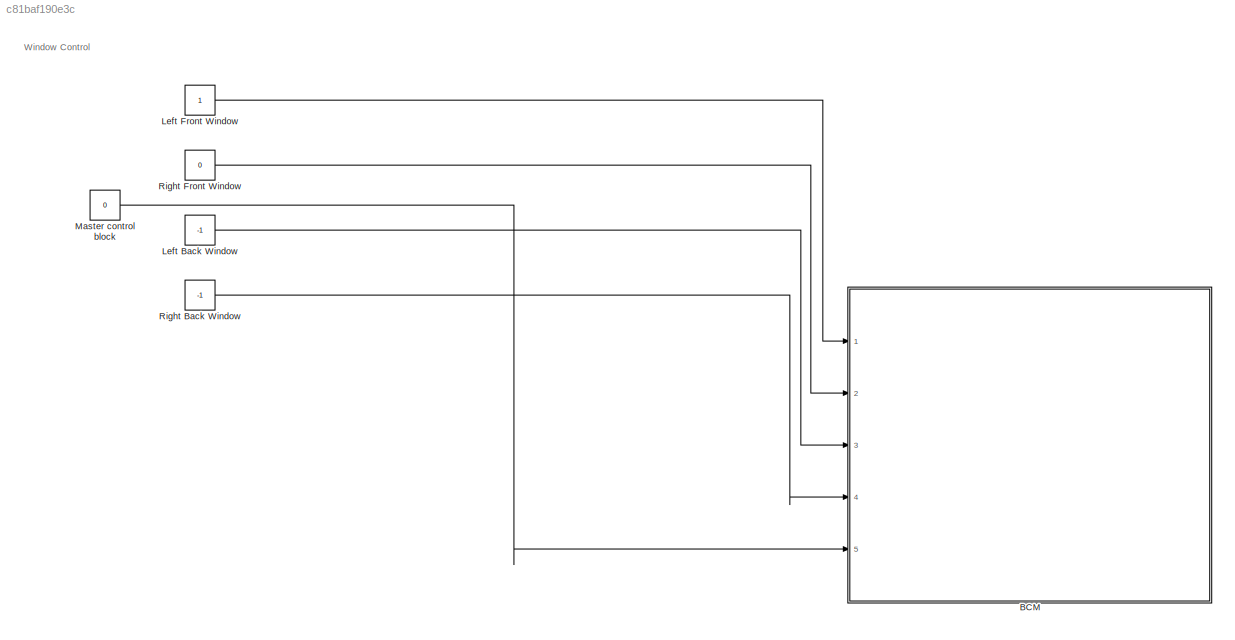
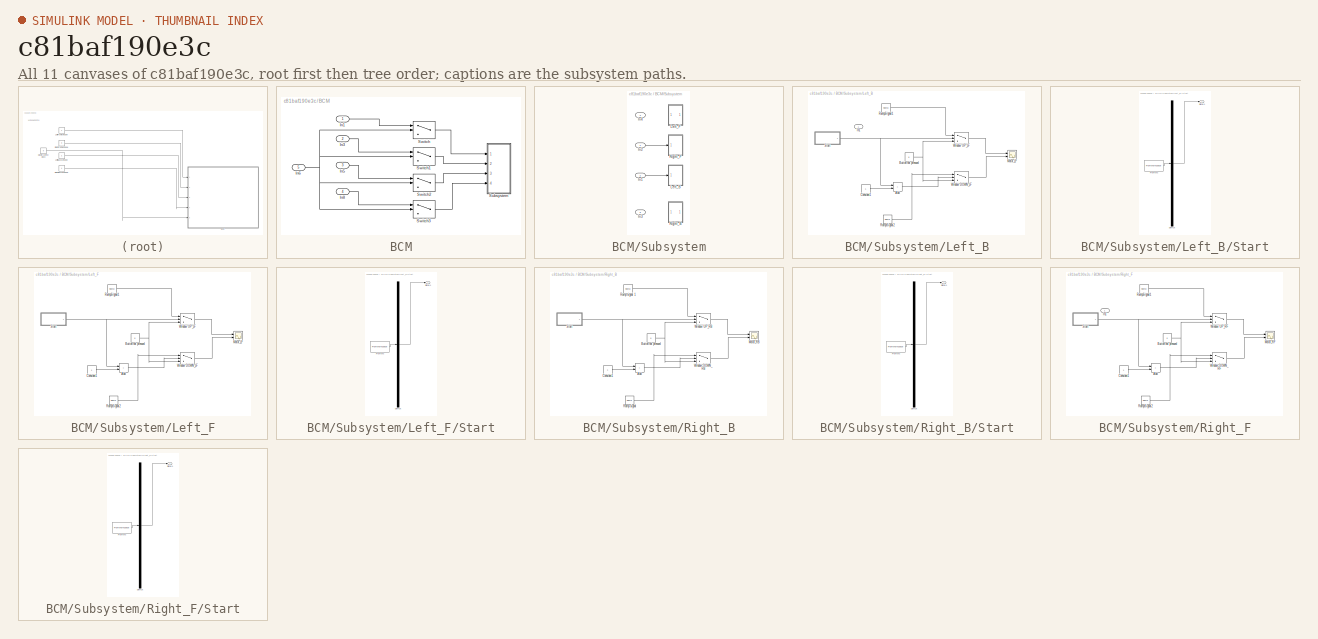
[diagram: thumbnail index - all 11 canvases of the model, root first then tree order]
MODEL slx_c81baf190e3c
KIND model
CONFIG AbsTol = auto
CONFIG EnableMultiTasking = off
CONFIG FixedStep = auto
CONFIG MaxStep = auto
CONFIG MinStep = auto
CONFIG RelTol = 1e-3
CONFIG SampleTimeConstraint = Unconstrained
CONFIG SolverName = VariableStepAuto
CONFIG StartTime = 0.0
CONFIG StopTime = 10.0
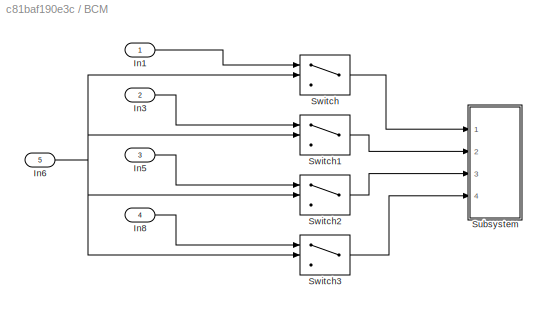
BLOCK [SubSystem] BCM
  Ports = [5]
  RequestExecContextInheritance = off
BLOCK [Inport] BCM/In1
BLOCK [Inport] BCM/In3
  Port = 2
BLOCK [Inport] BCM/In5
  Port = 3
BLOCK [Inport] BCM/In6
  Port = 5
BLOCK [Inport] BCM/In8
  Port = 4
BLOCK [SubSystem] BCM/Subsystem
  Ports = [4]
  RequestExecContextInheritance = off
BLOCK [Inport] BCM/Subsystem/In1
  Port = 2
BLOCK [Inport] BCM/Subsystem/In2
BLOCK [Inport] BCM/Subsystem/In3
  Port = 3
BLOCK [Inport] BCM/Subsystem/In4
  Port = 4
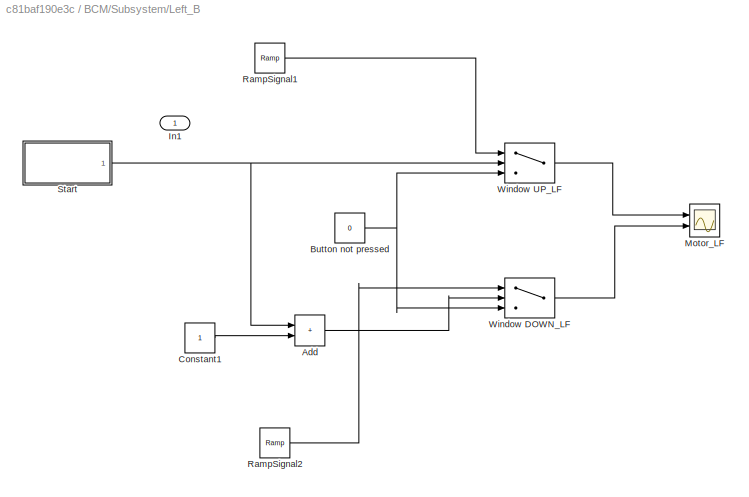
BLOCK [SubSystem] BCM/Subsystem/Left_B
  Ports = [1]
  RequestExecContextInheritance = off
BLOCK [Sum] BCM/Subsystem/Left_B/Add
  IconShape = rectangular
  Ports = [2, 1]
BLOCK [Constant] BCM/Subsystem/Left_B/Button not pressed
  Value = 0
BLOCK [Constant] BCM/Subsystem/Left_B/Constant1
BLOCK [Inport] BCM/Subsystem/Left_B/In1
BLOCK [Scope] BCM/Subsystem/Left_B/Motor_LF
  Floating = off
  NumInputPorts = 2
  Ports = [2]
  ScopeSpecificationString = Simulink.scopes.TimeScopeBlockCfg('CurrentConfiguration', extmgr.ConfigurationSet(extmgr.Configuration('Core','General UI',true),extmgr.Configuration('Core','Source UI',true),extmgr.Configuration('Sources','WiredSimulink',true,'DataLoggingVariableName','ScopeData3'),extmgr.Configuration('Visuals','Time Domain',true,'SerializedDisplays',{struct('MinYLimReal','-0.75','MaxYLimReal','6.75','YLabelReal...<+2109ch>
BLOCK [Reference] BCM/Subsystem/Left_B/RampSignal1  REF=simulink/Sources/Ramp
  Ports = [0, 1]
  SourceBlock = simulink/Sources/Ramp
  SourceProductBaseCode = SL
  SourceType = Ramp
BLOCK [Reference] BCM/Subsystem/Left_B/RampSignal2  REF=simulink/Sources/Ramp
  Ports = [0, 1]
  SourceBlock = simulink/Sources/Ramp
  SourceProductBaseCode = SL
  SourceType = Ramp
BLOCK [SubSystem] BCM/Subsystem/Left_B/Start
  ClipboardFcn = sigbuilder_block('clipboard');
  CloseFcn = sigbuilder_block('close');
  ContinueFcn = sigbuilder_block('continue');
  CopyFcn = sigbuilder_block('copy');
  DeleteFcn = sigbuilder_block('delete');
  LoadFcn = sigbuilder_block('load');
  MaskHideContents = on
  ModelCloseFcn = sigbuilder_block('modelClose');
  NameChangeFcn = sigbuilder_block('namechange');
  OpenFcn = sigbuilder_block('open',[437.6 199.2 550.4 400 ]);
  PauseFcn = sigbuilder_block('pause');
  Ports = [0, 1]
  PreSaveFcn = sigbuilder_block('preSave');
  RequestExecContextInheritance = off
  StartFcn = sigbuilder_block('start');
  StopFcn = sigbuilder_block('stop');
  Tag = STV Subsys
BLOCK [Demux] BCM/Subsystem/Left_B/Start/Demux
  DisplayOption = none
  Outputs = 1
  Ports = [1, 1]
  Tag = STV Demux
BLOCK [FromWorkspace] BCM/Subsystem/Left_B/Start/FromWs
  Tag = STV FromWs
  VariableName = tuvar
BLOCK [Outport] BCM/Subsystem/Left_B/Start/Signal 1
  Tag = STV Outport
BLOCK [Switch] BCM/Subsystem/Left_B/Window DOWN_LF
  InputSameDT = off
  SaturateOnIntegerOverflow = off
BLOCK [Switch] BCM/Subsystem/Left_B/Window UP_LF
  Criteria = u2 > Threshold
  InputSameDT = off
  SaturateOnIntegerOverflow = off
BLOCK [SubSystem] BCM/Subsystem/Left_F
  Ports = []
  RequestExecContextInheritance = off
BLOCK [Sum] BCM/Subsystem/Left_F/Add
  IconShape = rectangular
  Ports = [2, 1]
BLOCK [Constant] BCM/Subsystem/Left_F/Button not pressed
  Value = 0
BLOCK [Constant] BCM/Subsystem/Left_F/Constant1
BLOCK [Scope] BCM/Subsystem/Left_F/Motor_LF
  Floating = off
  NumInputPorts = 2
  Ports = [2]
  ScopeSpecificationString = Simulink.scopes.TimeScopeBlockCfg('CurrentConfiguration', extmgr.ConfigurationSet(extmgr.Configuration('Core','General UI',true),extmgr.Configuration('Core','Source UI',true),extmgr.Configuration('Sources','WiredSimulink',true,'DataLoggingVariableName','ScopeData1'),extmgr.Configuration('Visuals','Time Domain',true,'SerializedDisplays',{struct('MinYLimReal','-0.75','MaxYLimReal','6.75','YLabelReal...<+2091ch>
BLOCK [Reference] BCM/Subsystem/Left_F/RampSignal1  REF=simulink/Sources/Ramp
  Ports = [0, 1]
  SourceBlock = simulink/Sources/Ramp
  SourceProductBaseCode = SL
  SourceType = Ramp
BLOCK [Reference] BCM/Subsystem/Left_F/RampSignal2  REF=simulink/Sources/Ramp
  Ports = [0, 1]
  SourceBlock = simulink/Sources/Ramp
  SourceProductBaseCode = SL
  SourceType = Ramp
BLOCK [SubSystem] BCM/Subsystem/Left_F/Start
  ClipboardFcn = sigbuilder_block('clipboard');
  CloseFcn = sigbuilder_block('close');
  ContinueFcn = sigbuilder_block('continue');
  CopyFcn = sigbuilder_block('copy');
  DeleteFcn = sigbuilder_block('delete');
  LoadFcn = sigbuilder_block('load');
  MaskHideContents = on
  ModelCloseFcn = sigbuilder_block('modelClose');
  NameChangeFcn = sigbuilder_block('namechange');
  OpenFcn = sigbuilder_block('open',[437.6 199.2 550.4 400 ]);
  PauseFcn = sigbuilder_block('pause');
  Ports = [0, 1]
  PreSaveFcn = sigbuilder_block('preSave');
  RequestExecContextInheritance = off
  StartFcn = sigbuilder_block('start');
  StopFcn = sigbuilder_block('stop');
  Tag = STV Subsys
BLOCK [Demux] BCM/Subsystem/Left_F/Start/Demux
  DisplayOption = none
  Outputs = 1
  Ports = [1, 1]
  Tag = STV Demux
BLOCK [FromWorkspace] BCM/Subsystem/Left_F/Start/FromWs
  Tag = STV FromWs
  VariableName = tuvar
BLOCK [Outport] BCM/Subsystem/Left_F/Start/Signal 1
  Tag = STV Outport
BLOCK [Switch] BCM/Subsystem/Left_F/Window DOWN_LF
  InputSameDT = off
  SaturateOnIntegerOverflow = off
BLOCK [Switch] BCM/Subsystem/Left_F/Window UP_LF 
  Criteria = u2 > Threshold
  InputSameDT = off
  SaturateOnIntegerOverflow = off
BLOCK [SubSystem] BCM/Subsystem/Right_B
  Ports = []
  RequestExecContextInheritance = off
BLOCK [Sum] BCM/Subsystem/Right_B/Add
  IconShape = rectangular
  Ports = [2, 1]
BLOCK [Constant] BCM/Subsystem/Right_B/Button not pressed
  Value = 0
BLOCK [Constant] BCM/Subsystem/Right_B/Constant1
BLOCK [Scope] BCM/Subsystem/Right_B/Motor_RB
  Floating = off
  NumInputPorts = 2
  Ports = [2]
  ScopeSpecificationString = Simulink.scopes.TimeScopeBlockCfg('CurrentConfiguration', extmgr.ConfigurationSet(extmgr.Configuration('Core','General UI',true),extmgr.Configuration('Core','Source UI',true),extmgr.Configuration('Sources','WiredSimulink',true),extmgr.Configuration('Visuals','Time Domain',true,'SerializedDisplays',{struct('MinYLimReal','-0.75','MaxYLimReal','6.75','YLabelReal','','MinYLimMag','0.00000','MaxYLimMag...<+2028ch>
BLOCK [Reference] BCM/Subsystem/Right_B/Ramp signal  REF=simulink/Sources/Ramp
  Ports = [0, 1]
  SourceBlock = simulink/Sources/Ramp
  SourceProductBaseCode = SL
  SourceType = Ramp
BLOCK [Reference] BCM/Subsystem/Right_B/Ramp signal 1  REF=simulink/Sources/Ramp
  Ports = [0, 1]
  SourceBlock = simulink/Sources/Ramp
  SourceProductBaseCode = SL
  SourceType = Ramp
BLOCK [SubSystem] BCM/Subsystem/Right_B/Start
  ClipboardFcn = sigbuilder_block('clipboard');
  CloseFcn = sigbuilder_block('close');
  ContinueFcn = sigbuilder_block('continue');
  CopyFcn = sigbuilder_block('copy');
  DeleteFcn = sigbuilder_block('delete');
  LoadFcn = sigbuilder_block('load');
  MaskHideContents = on
  ModelCloseFcn = sigbuilder_block('modelClose');
  NameChangeFcn = sigbuilder_block('namechange');
  OpenFcn = sigbuilder_block('open',[437.6 199.2 550.4 400 ]);
  PauseFcn = sigbuilder_block('pause');
  Ports = [0, 1]
  PreSaveFcn = sigbuilder_block('preSave');
  RequestExecContextInheritance = off
  StartFcn = sigbuilder_block('start');
  StopFcn = sigbuilder_block('stop');
  Tag = STV Subsys
BLOCK [Demux] BCM/Subsystem/Right_B/Start/Demux
  DisplayOption = none
  Outputs = 1
  Ports = [1, 1]
  Tag = STV Demux
BLOCK [FromWorkspace] BCM/Subsystem/Right_B/Start/FromWs
  Tag = STV FromWs
  VariableName = tuvar
BLOCK [Outport] BCM/Subsystem/Right_B/Start/Signal 1
  Tag = STV Outport
BLOCK [Switch] BCM/Subsystem/Right_B/Window DOWN_RB
  InputSameDT = off
  SaturateOnIntegerOverflow = off
BLOCK [Switch] BCM/Subsystem/Right_B/Window UP_RB
  Criteria = u2 > Threshold
  InputSameDT = off
  SaturateOnIntegerOverflow = off
BLOCK [SubSystem] BCM/Subsystem/Right_F
  Ports = [1]
  RequestExecContextInheritance = off
BLOCK [Sum] BCM/Subsystem/Right_F/Add
  IconShape = rectangular
  Ports = [2, 1]
BLOCK [Constant] BCM/Subsystem/Right_F/Button not pressed
  Value = 0
BLOCK [Constant] BCM/Subsystem/Right_F/Constant1
BLOCK [Inport] BCM/Subsystem/Right_F/In1
BLOCK [Scope] BCM/Subsystem/Right_F/Motor_RF
  Floating = off
  NumInputPorts = 2
  Ports = [2]
  ScopeSpecificationString = Simulink.scopes.TimeScopeBlockCfg('CurrentConfiguration', extmgr.ConfigurationSet(extmgr.Configuration('Core','General UI',true),extmgr.Configuration('Core','Source UI',true),extmgr.Configuration('Sources','WiredSimulink',true,'DataLoggingVariableName','ScopeData2'),extmgr.Configuration('Visuals','Time Domain',true,'SerializedDisplays',{struct('MinYLimReal','-0.75','MaxYLimReal','6.75','YLabelReal...<+2117ch>
BLOCK [Reference] BCM/Subsystem/Right_F/RampSignal1  REF=simulink/Sources/Ramp
  Ports = [0, 1]
  SourceBlock = simulink/Sources/Ramp
  SourceProductBaseCode = SL
  SourceType = Ramp
BLOCK [Reference] BCM/Subsystem/Right_F/RampSignal2  REF=simulink/Sources/Ramp
  Ports = [0, 1]
  SourceBlock = simulink/Sources/Ramp
  SourceProductBaseCode = SL
  SourceType = Ramp
BLOCK [SubSystem] BCM/Subsystem/Right_F/Start
  ClipboardFcn = sigbuilder_block('clipboard');
  CloseFcn = sigbuilder_block('close');
  ContinueFcn = sigbuilder_block('continue');
  CopyFcn = sigbuilder_block('copy');
  DeleteFcn = sigbuilder_block('delete');
  LoadFcn = sigbuilder_block('load');
  MaskHideContents = on
  ModelCloseFcn = sigbuilder_block('modelClose');
  NameChangeFcn = sigbuilder_block('namechange');
  OpenFcn = sigbuilder_block('open',[437.6 199.2 550.4 400 ]);
  PauseFcn = sigbuilder_block('pause');
  Ports = [0, 1]
  PreSaveFcn = sigbuilder_block('preSave');
  RequestExecContextInheritance = off
  StartFcn = sigbuilder_block('start');
  StopFcn = sigbuilder_block('stop');
  Tag = STV Subsys
BLOCK [Demux] BCM/Subsystem/Right_F/Start/Demux
  DisplayOption = none
  Outputs = 1
  Ports = [1, 1]
  Tag = STV Demux
BLOCK [FromWorkspace] BCM/Subsystem/Right_F/Start/FromWs
  Tag = STV FromWs
  VariableName = tuvar
BLOCK [Outport] BCM/Subsystem/Right_F/Start/Signal 1
  Tag = STV Outport
BLOCK [Switch] BCM/Subsystem/Right_F/Window DOWN_RF
  InputSameDT = off
  SaturateOnIntegerOverflow = off
BLOCK [Switch] BCM/Subsystem/Right_F/Window UP_RF
  Criteria = u2 > Threshold
  InputSameDT = off
  SaturateOnIntegerOverflow = off
BLOCK [Switch] BCM/Switch
  Criteria = u2 > Threshold
  InputSameDT = off
  SaturateOnIntegerOverflow = off
BLOCK [Switch] BCM/Switch1
  Criteria = u2 > Threshold
  InputSameDT = off
  SaturateOnIntegerOverflow = off
BLOCK [Switch] BCM/Switch2
  Criteria = u2 > Threshold
  InputSameDT = off
  SaturateOnIntegerOverflow = off
BLOCK [Switch] BCM/Switch3
  Criteria = u2 > Threshold
  InputSameDT = off
  SaturateOnIntegerOverflow = off
BLOCK [Constant] Left Back Window
  Value = -1
BLOCK [Constant] Left Front Window
BLOCK [Constant] Master control block
  Value = 0
BLOCK [Constant] Right Back Window
  Value = -1
BLOCK [Constant] Right Front Window
  Value = 0
ANNOTATION (root): Window Control
LINE BCM/In1:1 -> BCM/Switch:1
LINE BCM/In3:1 -> BCM/Switch1:1
LINE BCM/In5:1 -> BCM/Switch2:1
NET BCM/In6:1 -> BCM/Switch1:2, BCM/Switch2:2, BCM/Switch3:2, BCM/Switch:2
LINE BCM/In8:1 -> BCM/Switch3:1
LINE BCM/Subsystem/In1:1 -> BCM/Subsystem/Left_B:1
LINE BCM/Subsystem/In2:1 -> BCM/Subsystem/Right_F:1
LINE BCM/Subsystem/Left_B/Add:1 -> BCM/Subsystem/Left_B/Window DOWN_LF:2
NET BCM/Subsystem/Left_B/Button not pressed:1 -> BCM/Subsystem/Left_B/Window DOWN_LF:3, BCM/Subsystem/Left_B/Window UP_LF:3
LINE BCM/Subsystem/Left_B/Constant1:1 -> BCM/Subsystem/Left_B/Add:2
LINE BCM/Subsystem/Left_B/RampSignal1:1 -> BCM/Subsystem/Left_B/Window UP_LF:1
LINE BCM/Subsystem/Left_B/RampSignal2:1 -> BCM/Subsystem/Left_B/Window DOWN_LF:1
NET BCM/Subsystem/Left_B/Start:1 -> BCM/Subsystem/Left_B/Add:1, BCM/Subsystem/Left_B/Window UP_LF:2
LINE BCM/Subsystem/Left_B/Window DOWN_LF:1 -> BCM/Subsystem/Left_B/Motor_LF:2
LINE BCM/Subsystem/Left_B/Window UP_LF:1 -> BCM/Subsystem/Left_B/Motor_LF:1
LINE BCM/Subsystem/Left_F/Add:1 -> BCM/Subsystem/Left_F/Window DOWN_LF:2
NET BCM/Subsystem/Left_F/Button not pressed:1 -> BCM/Subsystem/Left_F/Window DOWN_LF:3, BCM/Subsystem/Left_F/Window UP_LF :3
LINE BCM/Subsystem/Left_F/Constant1:1 -> BCM/Subsystem/Left_F/Add:2
LINE BCM/Subsystem/Left_F/RampSignal1:1 -> BCM/Subsystem/Left_F/Window UP_LF :1
LINE BCM/Subsystem/Left_F/RampSignal2:1 -> BCM/Subsystem/Left_F/Window DOWN_LF:1
NET BCM/Subsystem/Left_F/Start:1 -> BCM/Subsystem/Left_F/Add:1, BCM/Subsystem/Left_F/Window UP_LF :2
LINE BCM/Subsystem/Left_F/Window DOWN_LF:1 -> BCM/Subsystem/Left_F/Motor_LF:2
LINE BCM/Subsystem/Left_F/Window UP_LF :1 -> BCM/Subsystem/Left_F/Motor_LF:1
LINE BCM/Subsystem/Right_B/Add:1 -> BCM/Subsystem/Right_B/Window DOWN_RB:2
NET BCM/Subsystem/Right_B/Button not pressed:1 -> BCM/Subsystem/Right_B/Window DOWN_RB:3, BCM/Subsystem/Right_B/Window UP_RB:3
LINE BCM/Subsystem/Right_B/Constant1:1 -> BCM/Subsystem/Right_B/Add:2
LINE BCM/Subsystem/Right_B/Ramp signal 1:1 -> BCM/Subsystem/Right_B/Window UP_RB:1
LINE BCM/Subsystem/Right_B/Ramp signal:1 -> BCM/Subsystem/Right_B/Window DOWN_RB:1
NET BCM/Subsystem/Right_B/Start:1 -> BCM/Subsystem/Right_B/Add:1, BCM/Subsystem/Right_B/Window UP_RB:2
LINE BCM/Subsystem/Right_B/Window DOWN_RB:1 -> BCM/Subsystem/Right_B/Motor_RB:2
LINE BCM/Subsystem/Right_B/Window UP_RB:1 -> BCM/Subsystem/Right_B/Motor_RB:1
LINE BCM/Subsystem/Right_F/Add:1 -> BCM/Subsystem/Right_F/Window DOWN_RF:2
NET BCM/Subsystem/Right_F/Button not pressed:1 -> BCM/Subsystem/Right_F/Window DOWN_RF:3, BCM/Subsystem/Right_F/Window UP_RF:3
LINE BCM/Subsystem/Right_F/Constant1:1 -> BCM/Subsystem/Right_F/Add:2
LINE BCM/Subsystem/Right_F/RampSignal1:1 -> BCM/Subsystem/Right_F/Window UP_RF:1
LINE BCM/Subsystem/Right_F/RampSignal2:1 -> BCM/Subsystem/Right_F/Window DOWN_RF:1
NET BCM/Subsystem/Right_F/Start:1 -> BCM/Subsystem/Right_F/Add:1, BCM/Subsystem/Right_F/Window UP_RF:2
LINE BCM/Subsystem/Right_F/Window DOWN_RF:1 -> BCM/Subsystem/Right_F/Motor_RF:2
LINE BCM/Subsystem/Right_F/Window UP_RF:1 -> BCM/Subsystem/Right_F/Motor_RF:1
LINE BCM/Switch1:1 -> BCM/Subsystem:2
LINE BCM/Switch2:1 -> BCM/Subsystem:3
LINE BCM/Switch3:1 -> BCM/Subsystem:4
LINE BCM/Switch:1 -> BCM/Subsystem:1
LINE Left Back Window:1 -> BCM:3
LINE Left Front Window:1 -> BCM:1
LINE Master control block:1 -> BCM:5
LINE Right Back Window:1 -> BCM:4
LINE Right Front Window:1 -> BCM:2
note: NET lines group one-source signal fan-out (src -> all destinations, sorted); 1:1 wires keep LINE
